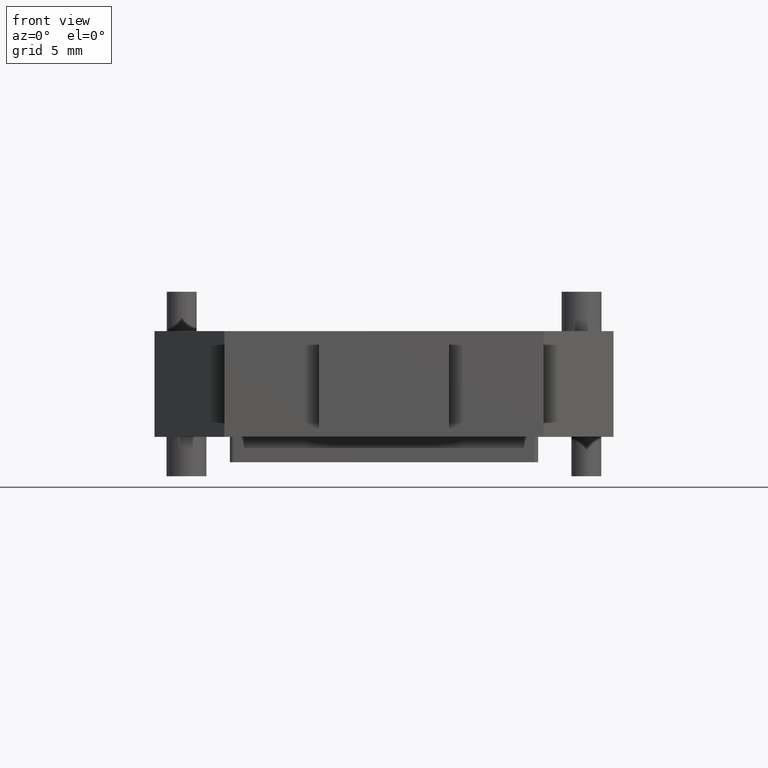
[diagram: clean part render]
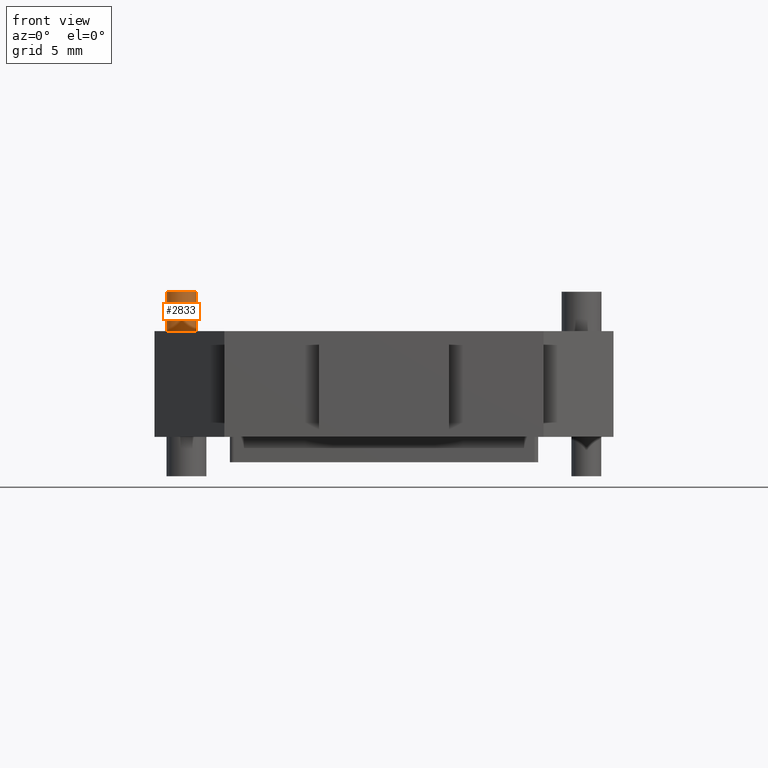
[diagram: same view with one face highlighted and labeled with its STEP entity id]
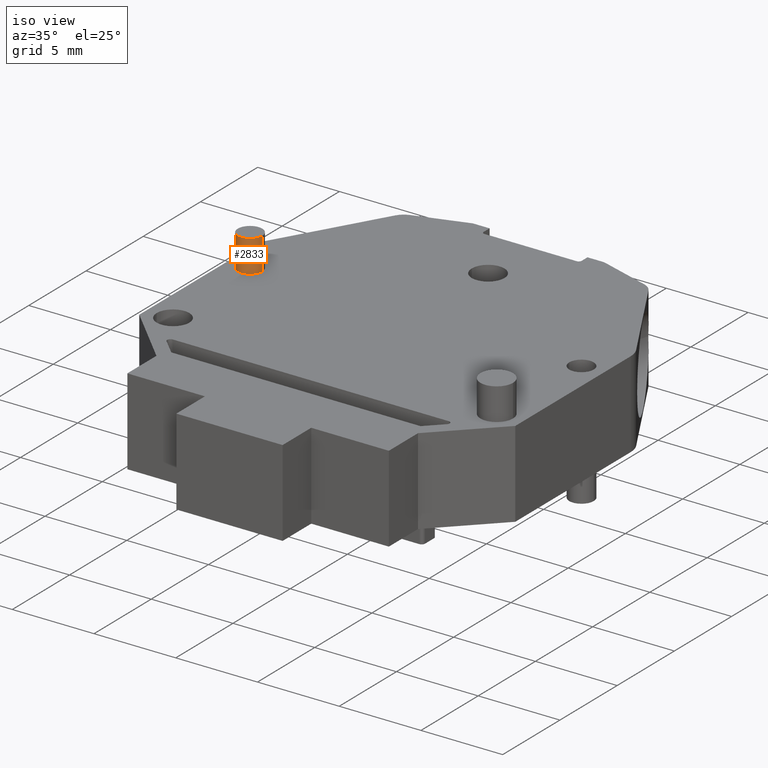
[diagram: same view with one face highlighted and labeled with its STEP entity id]
A machine part, front view. The second image highlights one B-rep face of the part: STEP entity #2833.
A second angle (iso view) of the same face is appended — the face is thin or edge-on in the first view.
In plain terms, the highlighted cylindrical surface (edge-blend (fillet) strip) has radius 0.75 mm, axis along (0, 0, -1).
Its self-contained STEP definition (entity closure, byte-faithful):
#80 = LINE ( 'NONE', #97, #4362 ) ;
#93 = DIRECTION ( 'NONE',  ( 0.0000000000000000000, 0.0000000000000000000, -1.000000000000000000 ) ) ;
#97 = CARTESIAN_POINT ( 'NONE',  ( 280.3965869395585200, 446.2741209569480200, -49.56000000000000200 ) ) ;
#122 = DIRECTION ( 'NONE',  ( 0.0000000000000000000, 0.0000000000000000000, -1.000000000000000000 ) ) ;
#158 = LINE ( 'NONE', #159, #4320 ) ;
#159 = CARTESIAN_POINT ( 'NONE',  ( 281.8965869395593700, 446.2741209569480200, -49.56000000000000200 ) ) ;
#810 = EDGE_LOOP ( 'NONE', ( #1331, #1385, #1295, #1392 ) ) ;
#830 = CARTESIAN_POINT ( 'NONE',  ( 281.8965869395593700, 446.2741209569480200, -49.56000000000000200 ) ) ;
#856 = CARTESIAN_POINT ( 'NONE',  ( 280.3965869395585200, 446.2741209569480200, -51.53000000000000100 ) ) ;
#873 = CARTESIAN_POINT ( 'NONE',  ( 280.3965869395585200, 446.2741209569480200, -49.56000000000000200 ) ) ;
#913 = CARTESIAN_POINT ( 'NONE',  ( 281.8965869395593700, 446.2741209569480200, -51.53000000000000100 ) ) ;
#1295 = ORIENTED_EDGE ( 'NONE', *, *, #2287, .T. ) ;
#1331 = ORIENTED_EDGE ( 'NONE', *, *, #2296, .F. ) ;
#1385 = ORIENTED_EDGE ( 'NONE', *, *, #2790, .T. ) ;
#1392 = ORIENTED_EDGE ( 'NONE', *, *, #2864, .F. ) ;
#1731 = VERTEX_POINT ( 'NONE', #830 ) ;
#1736 = VERTEX_POINT ( 'NONE', #873 ) ;
#1737 = VERTEX_POINT ( 'NONE', #856 ) ;
#1766 = VERTEX_POINT ( 'NONE', #913 ) ;
#2287 = EDGE_CURVE ( 'NONE', #1736, #1737, #80, .T. ) ;
#2296 = EDGE_CURVE ( 'NONE', #1731, #1766, #158, .T. ) ;
#2790 = EDGE_CURVE ( 'NONE', #1731, #1736, #4190, .T. ) ;
#2833 = ADVANCED_FACE ( 'NONE', ( #4992 ), #4981, .T. ) ;
#2864 = EDGE_CURVE ( 'NONE', #1766, #1737, #4270, .T. ) ;
#4190 = CIRCLE ( 'NONE', #4214, 0.7500000000004170000 ) ;
#4205 = AXIS2_PLACEMENT_3D ( 'NONE', #4979, #5005, #4962 ) ;
#4214 = AXIS2_PLACEMENT_3D ( 'NONE', #4837, #4853, #4829 ) ;
#4270 = CIRCLE ( 'NONE', #4295, 0.7500000000004170000 ) ;
#4295 = AXIS2_PLACEMENT_3D ( 'NONE', #5064, #5067, #5090 ) ;
#4320 = VECTOR ( 'NONE', #122, 1000.000000000000000 ) ;
#4362 = VECTOR ( 'NONE', #93, 1000.000000000000000 ) ;
#4829 = DIRECTION ( 'NONE',  ( -1.000000000000000000, 0.0000000000000000000, 0.0000000000000000000 ) ) ;
#4837 = CARTESIAN_POINT ( 'NONE',  ( 281.1465869395589700, 446.2741209569480200, -49.56000000000000200 ) ) ;
#4853 = DIRECTION ( 'NONE',  ( 0.0000000000000000000, 0.0000000000000000000, -1.000000000000000000 ) ) ;
#4962 = DIRECTION ( 'NONE',  ( -1.000000000000000000, 0.0000000000000000000, 0.0000000000000000000 ) ) ;
#4979 = CARTESIAN_POINT ( 'NONE',  ( 281.1465869395589700, 446.2741209569480200, -49.56000000000000200 ) ) ;
#4981 = CYLINDRICAL_SURFACE ( 'NONE', #4205, 0.7500000000004170000 ) ;
#4992 = FACE_OUTER_BOUND ( 'NONE', #810, .T. ) ;
#5005 = DIRECTION ( 'NONE',  ( 0.0000000000000000000, 0.0000000000000000000, -1.000000000000000000 ) ) ;
#5064 = CARTESIAN_POINT ( 'NONE',  ( 281.1465869395589700, 446.2741209569480200, -51.53000000000000100 ) ) ;
#5067 = DIRECTION ( 'NONE',  ( 0.0000000000000000000, 0.0000000000000000000, -1.000000000000000000 ) ) ;
#5090 = DIRECTION ( 'NONE',  ( -1.000000000000000000, 0.0000000000000000000, 0.0000000000000000000 ) ) ;